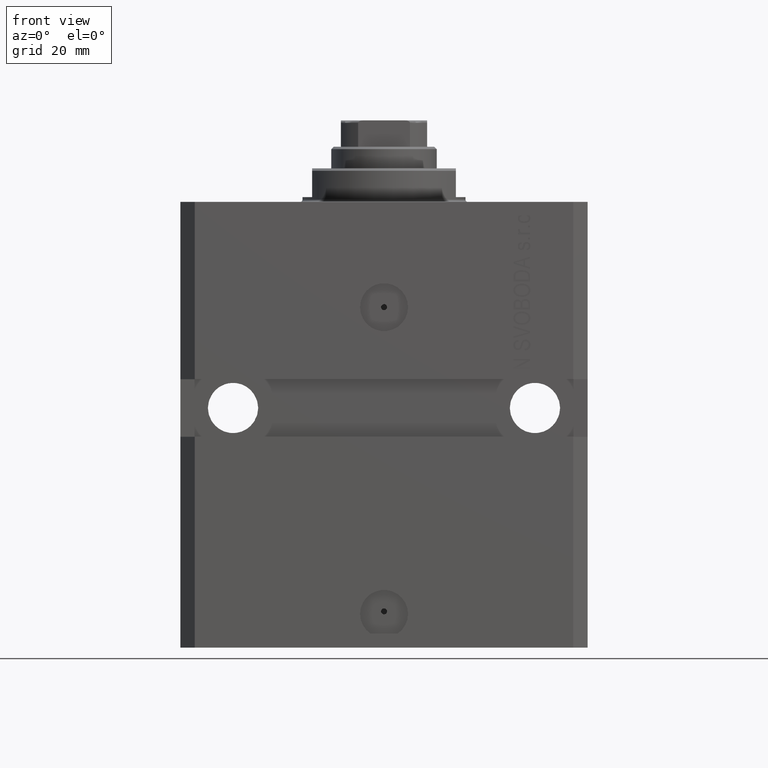
[diagram: clean part render]
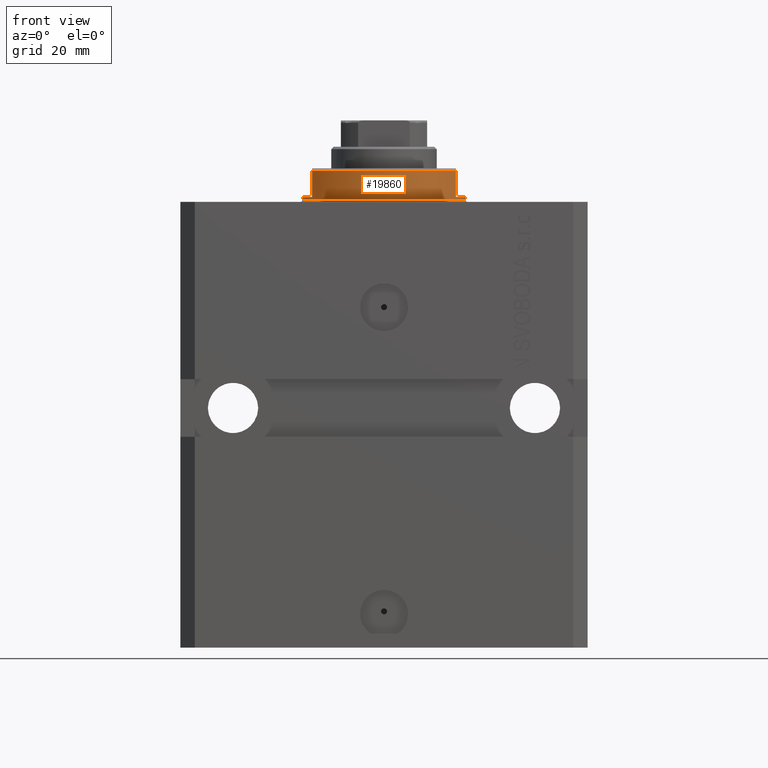
[diagram: same view with one face highlighted and labeled with its STEP entity id]
A machine part, front view. The second image highlights one B-rep face of the part: STEP entity #19860.
In plain terms, the highlighted cylindrical surface (partial cylindrical patch) has radius 17 mm, axis along (0, 0, -1).
Its self-contained STEP definition (entity closure, byte-faithful):
#191 = CARTESIAN_POINT ( 'NONE',  ( -14.99999999999999645, -8.000000000000003553, -1.000000000000000000 ) ) ;
#1741 = VERTEX_POINT ( 'NONE', #5816 ) ;
#2077 = ORIENTED_EDGE ( 'NONE', *, *, #29654, .F. ) ;
#2660 = VECTOR ( 'NONE', #16875, 1000.000000000000000 ) ;
#3065 = LINE ( 'NONE', #41587, #2660 ) ;
#3464 = CARTESIAN_POINT ( 'NONE',  ( 0.000000000000000000, 0.000000000000000000, -6.500000000000013323 ) ) ;
#4359 = ORIENTED_EDGE ( 'NONE', *, *, #36476, .T. ) ;
#4857 = AXIS2_PLACEMENT_3D ( 'NONE', #24815, #12882, #10316 ) ;
#5466 = CYLINDRICAL_SURFACE ( 'NONE', #29481, 17.00000000000000000 ) ;
#5537 = VERTEX_POINT ( 'NONE', #15653 ) ;
#5816 = CARTESIAN_POINT ( 'NONE',  ( 17.00000000000000000, 0.000000000000000000, -1.000000000000000000 ) ) ;
#5908 = EDGE_CURVE ( 'NONE', #1741, #22489, #43775, .T. ) ;
#6868 = CARTESIAN_POINT ( 'NONE',  ( 15.00000000000000000, -8.000000000000001776, -7.000000000000000000 ) ) ;
#7762 = VECTOR ( 'NONE', #32303, 1000.000000000000000 ) ;
#9317 = DIRECTION ( 'NONE',  ( -0.000000000000000000, -0.000000000000000000, 1.000000000000000000 ) ) ;
#10316 = DIRECTION ( 'NONE',  ( 1.000000000000000000, 0.000000000000000000, 0.000000000000000000 ) ) ;
#10529 = CARTESIAN_POINT ( 'NONE',  ( 0.000000000000000000, 0.000000000000000000, -1.000000000000000000 ) ) ;
#12253 = AXIS2_PLACEMENT_3D ( 'NONE', #10529, #24352, #37529 ) ;
#12882 = DIRECTION ( 'NONE',  ( -0.000000000000000000, -0.000000000000000000, -1.000000000000000000 ) ) ;
#14094 = DIRECTION ( 'NONE',  ( -1.000000000000000000, 0.000000000000000000, 0.000000000000000000 ) ) ;
#15422 = DIRECTION ( 'NONE',  ( 1.000000000000000000, 0.000000000000000000, 0.000000000000000000 ) ) ;
#15450 = EDGE_CURVE ( 'NONE', #25372, #24531, #42077, .T. ) ;
#15653 = CARTESIAN_POINT ( 'NONE',  ( -17.00000000000000000, 2.081899558550500280E-15, -0.4999999999999995559 ) ) ;
#15848 = CARTESIAN_POINT ( 'NONE',  ( 14.99999999999999645, -8.000000000000003553, -1.000000000000000000 ) ) ;
#16430 = CIRCLE ( 'NONE', #4857, 17.00000000000000000 ) ;
#16875 = DIRECTION ( 'NONE',  ( -0.000000000000000000, -0.000000000000000000, 1.000000000000000000 ) ) ;
#17245 = DIRECTION ( 'NONE',  ( -0.000000000000000000, -0.000000000000000000, 1.000000000000000000 ) ) ;
#17595 = ORIENTED_EDGE ( 'NONE', *, *, #5908, .F. ) ;
#18673 = EDGE_CURVE ( 'NONE', #1741, #40498, #3065, .T. ) ;
#19362 = EDGE_LOOP ( 'NONE', ( #35651, #2077, #30238, #4359, #42428, #17595, #21739, #40599 ) ) ;
#19614 = EDGE_CURVE ( 'NONE', #22489, #43302, #27052, .T. ) ;
#19860 = ADVANCED_FACE ( 'NONE', ( #25858 ), #5466, .T. ) ;
#20107 = EDGE_CURVE ( 'NONE', #40498, #5537, #16430, .T. ) ;
#21716 = AXIS2_PLACEMENT_3D ( 'NONE', #3464, #31566, #14094 ) ;
#21739 = ORIENTED_EDGE ( 'NONE', *, *, #18673, .T. ) ;
#21960 = DIRECTION ( 'NONE',  ( -1.000000000000000000, 0.000000000000000000, 0.000000000000000000 ) ) ;
#22489 = VERTEX_POINT ( 'NONE', #15848 ) ;
#23928 = CARTESIAN_POINT ( 'NONE',  ( -15.00000000000000000, -8.000000000000001776, -6.500000000000014211 ) ) ;
#24057 = CARTESIAN_POINT ( 'NONE',  ( 17.00000000000000000, 0.000000000000000000, -0.4999999999999995559 ) ) ;
#24352 = DIRECTION ( 'NONE',  ( 0.000000000000000000, 0.000000000000000000, -1.000000000000000000 ) ) ;
#24531 = VERTEX_POINT ( 'NONE', #23928 ) ;
#24815 = CARTESIAN_POINT ( 'NONE',  ( 0.000000000000000000, 0.000000000000000000, -0.4999999999999995559 ) ) ;
#24846 = CARTESIAN_POINT ( 'NONE',  ( -15.00000000000000000, -8.000000000000001776, -7.000000000000000000 ) ) ;
#25103 = VECTOR ( 'NONE', #40882, 1000.000000000000000 ) ;
#25372 = VERTEX_POINT ( 'NONE', #191 ) ;
#25858 = FACE_OUTER_BOUND ( 'NONE', #19362, .T. ) ;
#27052 = LINE ( 'NONE', #6868, #25103 ) ;
#28595 = AXIS2_PLACEMENT_3D ( 'NONE', #29004, #35598, #21960 ) ;
#29004 = CARTESIAN_POINT ( 'NONE',  ( 0.000000000000000000, 0.000000000000000000, -1.000000000000000000 ) ) ;
#29481 = AXIS2_PLACEMENT_3D ( 'NONE', #32680, #9317, #15422 ) ;
#29654 = EDGE_CURVE ( 'NONE', #25372, #32513, #36869, .T. ) ;
#29702 = CIRCLE ( 'NONE', #21716, 17.00000000000000000 ) ;
#30238 = ORIENTED_EDGE ( 'NONE', *, *, #15450, .T. ) ;
#30609 = VECTOR ( 'NONE', #17245, 1000.000000000000000 ) ;
#31566 = DIRECTION ( 'NONE',  ( 0.000000000000000000, 0.000000000000000000, 1.000000000000000000 ) ) ;
#32303 = DIRECTION ( 'NONE',  ( 0.000000000000000000, 0.000000000000000000, -1.000000000000000000 ) ) ;
#32513 = VERTEX_POINT ( 'NONE', #33233 ) ;
#32680 = CARTESIAN_POINT ( 'NONE',  ( 0.000000000000000000, 0.000000000000000000, -7.000000000000000000 ) ) ;
#33104 = CARTESIAN_POINT ( 'NONE',  ( 15.00000000000000000, -8.000000000000001776, -6.500000000000013323 ) ) ;
#33233 = CARTESIAN_POINT ( 'NONE',  ( -17.00000000000000000, 2.081899558550500280E-15, -1.000000000000000000 ) ) ;
#34502 = CARTESIAN_POINT ( 'NONE',  ( -17.00000000000000000, 2.081899558550500280E-15, -7.000000000000000000 ) ) ;
#35598 = DIRECTION ( 'NONE',  ( 0.000000000000000000, 0.000000000000000000, -1.000000000000000000 ) ) ;
#35651 = ORIENTED_EDGE ( 'NONE', *, *, #42022, .F. ) ;
#36476 = EDGE_CURVE ( 'NONE', #24531, #43302, #29702, .T. ) ;
#36869 = CIRCLE ( 'NONE', #12253, 17.00000000000000000 ) ;
#37529 = DIRECTION ( 'NONE',  ( -1.000000000000000000, 0.000000000000000000, 0.000000000000000000 ) ) ;
#40498 = VERTEX_POINT ( 'NONE', #24057 ) ;
#40599 = ORIENTED_EDGE ( 'NONE', *, *, #20107, .T. ) ;
#40618 = LINE ( 'NONE', #34502, #30609 ) ;
#40882 = DIRECTION ( 'NONE',  ( 0.000000000000000000, 0.000000000000000000, -1.000000000000000000 ) ) ;
#41587 = CARTESIAN_POINT ( 'NONE',  ( 17.00000000000000000, 0.000000000000000000, -7.000000000000000000 ) ) ;
#42022 = EDGE_CURVE ( 'NONE', #32513, #5537, #40618, .T. ) ;
#42077 = LINE ( 'NONE', #24846, #7762 ) ;
#42428 = ORIENTED_EDGE ( 'NONE', *, *, #19614, .F. ) ;
#43302 = VERTEX_POINT ( 'NONE', #33104 ) ;
#43775 = CIRCLE ( 'NONE', #28595, 17.00000000000000000 ) ;